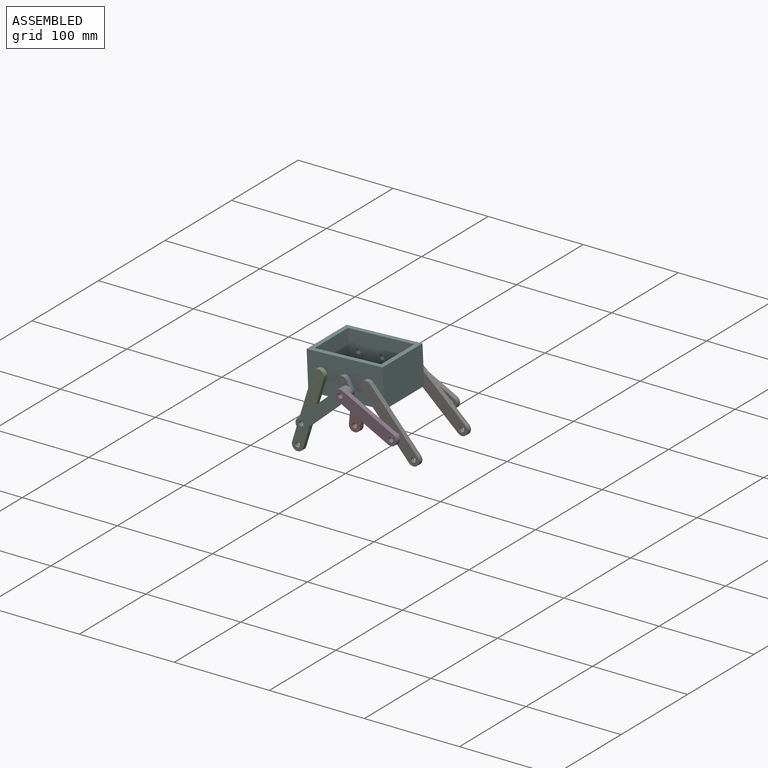
[diagram: assembled view]
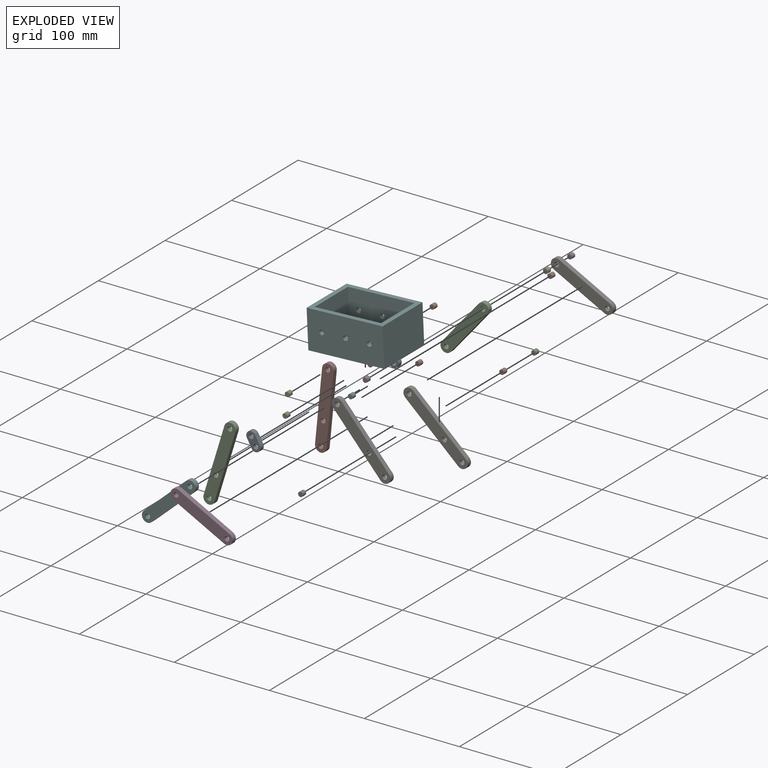
[diagram: exploded view]
GUIDED TOUR — MATED ASSEMBLY (Onshape document 2fccbab995a36dbee52e67f5, AutoMate assembly 2fccbab995a36dbee52e67f5_6775e2d75254c51af72c3cbe_d1aa989e99f5e056343849bb_default)

This assembly has 24 components, labeled P0..P23 below (a component is one placed occurrence of a part; the same part can appear more than once), held together by 27 mates. A mate is a constraint between two components; its type names the relative motion it leaves free:
  REVOLUTE — leaves rotation about the listed axis free (a hinge).
Axis/direction vectors are unit vectors and 'through' points are millimeter coordinates, both in the assembly's world frame.

MATES
  1. REVOLUTE "轉動 26": P18 <-> P14, axis (0.000, 1.000, 0.000) through (62.03, 70.00, -32.43) mm
  2. REVOLUTE "轉動 16": P23 <-> P1, axis (0.000, 1.000, 0.000) through (-24.97, 65.00, -1.14) mm
  3. REVOLUTE "轉動 3": P21 <-> P13, axis (0.000, -1.000, 0.000) through (24.97, 0.00, 1.14) mm
  4. REVOLUTE "轉動 14": P0 <-> P21, axis (0.000, -1.000, 0.000) through (0.00, 60.00, 0.00) mm
  5. REVOLUTE "轉動 23": P15 <-> P18, axis (0.000, 1.000, 0.000) through (62.03, 65.00, -32.43) mm
  6. REVOLUTE "轉動 18": P11 <-> P12, axis (0.000, 1.000, 0.000) through (8.68, 65.00, -4.97) mm
  7. REVOLUTE "轉動 22": P15 <-> P6, axis (0.000, 1.000, 0.000) through (62.03, 65.00, -32.43) mm
  8. REVOLUTE "轉動 8": P10 <-> P5, axis (0.000, -1.000, 0.000) through (-39.58, -5.00, -48.96) mm
  9. REVOLUTE "轉動 13": P9 <-> P21, axis (0.000, -1.000, 0.000) through (24.97, 60.00, 1.14) mm
  10. REVOLUTE "轉動 2": P21 <-> P20, axis (0.000, -1.000, 0.000) through (-24.97, 0.00, -1.14) mm
  11. REVOLUTE "轉動 6": P13 <-> P22, axis (0.000, 1.000, 0.000) through (24.97, 0.00, 1.14) mm
  12. REVOLUTE "轉動 4": P4 <-> P8, axis (0.000, 1.000, 0.000) through (0.00, 0.00, 0.00) mm
  13. REVOLUTE "轉動 20": P7 <-> P2, axis (0.000, 1.000, 0.000) through (-29.94, 70.00, -50.90) mm
  14. REVOLUTE "333": P8 <-> P5, axis (0.000, -1.000, 0.000) through (4.91, -5.00, -8.71) mm
  15. REVOLUTE "轉動 10": P22 <-> P16, axis (0.000, -1.000, 0.000) through (58.26, -5.00, -36.16) mm
  16. REVOLUTE "轉動 11": P16 <-> P19, axis (0.000, -1.000, 0.000) through (58.26, -10.00, -36.16) mm
  17. REVOLUTE "轉動 9": P5 <-> P19, axis (0.000, -1.000, 0.000) through (4.91, -10.00, -8.71) mm
  18. REVOLUTE "轉動 1": P21 <-> P4, axis (0.000, -1.000, 0.000) through (0.00, 0.00, 0.00) mm
  19. REVOLUTE "轉動 19": P2 <-> P12, axis (0.000, -1.000, 0.000) through (8.68, 65.00, -4.97) mm
  20. REVOLUTE "轉動 17": P0 <-> P11, axis (0.000, -1.000, 0.000) through (8.68, 60.00, -4.97) mm
  21. REVOLUTE "轉動 5": P20 <-> P10, axis (0.000, 1.000, 0.000) through (-24.97, 0.00, -1.14) mm
  22. REVOLUTE "轉動 24": P12 <-> P3, axis (0.000, 1.000, 0.000) through (8.68, 70.00, -4.97) mm
  23. REVOLUTE "轉動 12": P1 <-> P21, axis (0.000, -1.000, 0.000) through (-24.97, 60.00, -1.14) mm
  24. REVOLUTE "轉動 25": P2 <-> P14, axis (0.000, 1.000, 0.000) through (8.68, 70.00, -4.97) mm
  25. REVOLUTE "轉動 21": P23 <-> P2, axis (0.000, 1.000, 0.000) through (-29.94, 65.00, -50.90) mm
  26. REVOLUTE "轉動 7": P17 <-> P21, axis (0.000, -1.000, 0.000) through (0.00, 60.00, 0.00) mm
  27. REVOLUTE "轉動 15": P6 <-> P9, axis (0.000, 1.000, 0.000) through (24.97, 65.00, 1.14) mm

ASSEMBLY ORDER
  1. P0 — the base component [order heuristic]
  2. P17 — core [order heuristic]
  3. P13 — core [order heuristic]
  4. P23 [order verified]
  5. P2 — core [order heuristic]
  6. P22 — core [order heuristic]
  7. P21 [order verified]
  8. P12 — core [order heuristic]
  9. P20 [order verified]
  10. P8 — core [order heuristic]
  11. P7 [order verified]
  12. P11 [order verified]
  13. P19 [order verified]
  14. P15 [order verified]
  15. P9 [order verified]
  16. P18 [order verified]
  17. P6 [order verified]
  18. P3 [order verified]
  19. P1 [order verified]
  20. P4 — core [order heuristic]
  21. P10 [order verified]
  22. P5 [order verified]
  23. P16 [order verified]
  24. P14 [order verified]
(P3, P7, P9, P10, P11, P15 verified with a relaxed clearance tolerance: the source model stores slight part interference there.)
Order-tag legend:
  [order verified] — this step's position reverses a verified removal order: the component was checked to insert without passing through the ones already placed.
  [order heuristic] — the first 8 components form the assembly's core: parts whose collision-free extraction could not be verified, listed in mate-graph order.

Of the 24 components, 24 carry the full construction recipe — the FeatureScript program that regenerates the part's solid from scratch; the rest are supplied as boundary geometry only.
Because this assembly has more than 12 components, the tour below covers the 12 most significant ones individually (every recipe-attached component first, then the largest by part volume), in assembly order; the remaining 12 are summarized together in a grouped section at the end.
Each toured component is shown spotlighted twice — in the assembled view, then in the exploded view, where a leader line traces a displaced component back to its assembled socket (saturated green if recipe-attached, orange if geometry-only; every other component desaturated gray) — followed by its recipe or geometry summary and the mates that hold it.
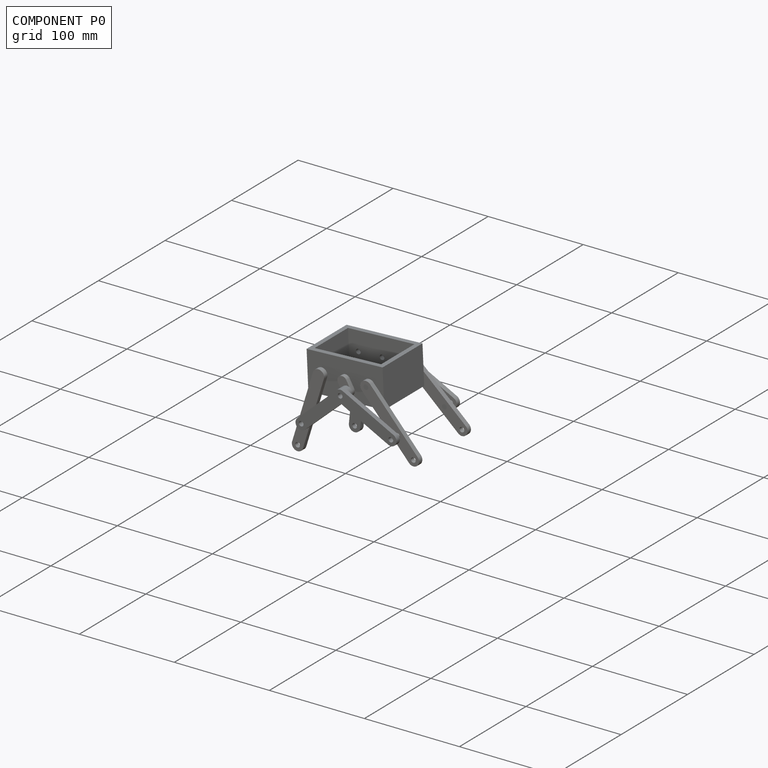
[diagram: component P0 — assembled]
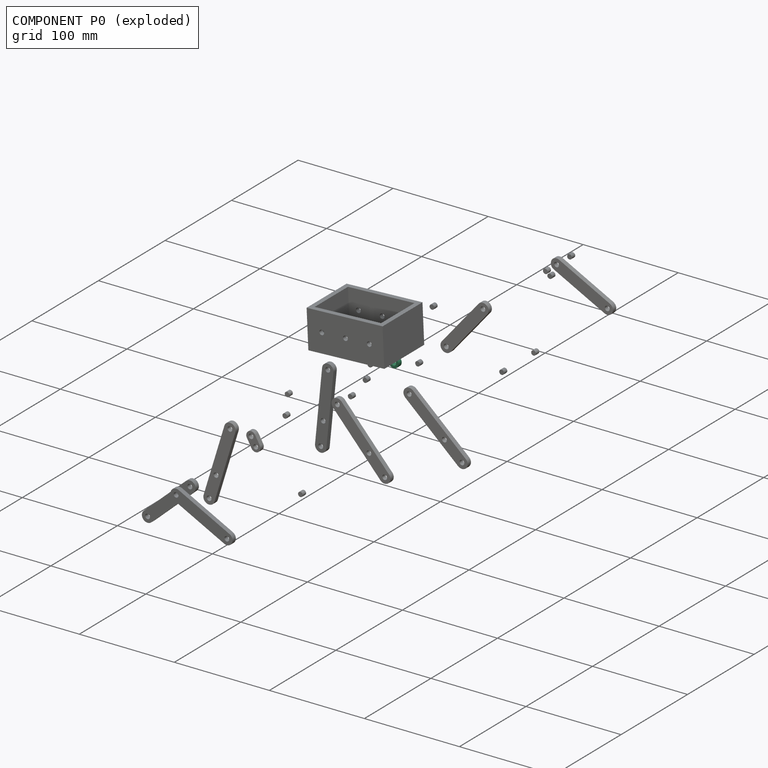
[diagram: component P0 — exploded]
COMPONENT P0 — recipe-attached (CADFS 00737394, mesh-verified: the recipe's output STEP matches this component's geometry to below the mesh-comparison resolution (tessellation chordal tolerance ~0.0343 mm)).
Held by: REVOLUTE mate "轉動 14" to P21; REVOLUTE mate "轉動 17" to P11.
Construction recipe (FeatureScript — the CAD program that rebuilds this solid; sketch coordinates are in the units given by the * unit suffixes, e.g. mm):

FeatureScript 1511;
import(path : "onshape/std/geometry.fs", version : "1511.0");
import(path : "onshape/std/common.fs", version : "1511.0");
const mm = millimeter;
const VERTEX = EntityType.VERTEX;
const EDGE = EntityType.EDGE;
const FACE = EntityType.FACE;
const BODY = EntityType.BODY;
function v(x, y){return vector(x, y);}
function OD(order){return orderDisambiguation(order);}
function OSD(set){return originalSetDisambiguation(set);}
function TD(topology){return topologyDisambiguation(topology);}
function TDD(query){return trueDependencyDisambiguation(query);}
function sQuery(a, b, c) {return sketchEntityQuery(a, b, c);}

annotation { "Feature Type Name" : "Feature", "Feature Type Description" : "" }
export const myFeature = defineFeature(function(context is Context, id is Id, definition is map)
    precondition{}
    {
        {
            var Q0;
            Q0=qCreatedBy(makeId("Front.planeOp"),FACE);
            var sketch = newSketch(context, id + "F0", { "sketchPlane" : qUnion([Q0])});
            skLineSegment(sketch, "E0.bottom", {"start": v(0, 0) * mm, "end": v(10, 0) * mm});
            skLineSegment(sketch, "E0.top", {"start": v(0, 10) * mm, "end": v(10, 10) * mm});
            skArc(sketch, "E1", {"start": v(10, 0) * mm, "mid": v(15, 5) * mm, "end": v(10, 10) * mm});
            skArc(sketch, "E2", {"start": v(0, 10) * mm, "mid": v(-5, 5) * mm, "end": v(0, 0) * mm});
            skCircle(sketch, "E3", {"center": v(0, 5) * mm, "radius": 2.5 * mm});
            skCircle(sketch, "E4", {"center": v(10, 5) * mm, "radius": 2.5 * mm});
            skSolve(sketch);
        }
        {
            var Q0;
            Q0=makeQuery(id+"F0.imprint","IMPRINT",FACE,{"disambiguationData":[TD([[makeQuery(id+"F0.imprint","IMPRINT",EDGE,{"derivedFrom":sQuery(id+"F0.wireOp",EDGE,"E0.bottom")}),1.0]])]});
            var Q1;
            Q1=makeQuery(id+"F0.imprint","IMPRINT",FACE,{"disambiguationData":[TD([[makeQuery(id+"F0.imprint","IMPRINT",EDGE,{"derivedFrom":sQuery(id+"F0.wireOp",EDGE,"oxad4vhf-pd54-7uuk-ZnQR-99PdKl2qKgE8")}),1.0]])]});
            var Q2;
            Q2=makeQuery(id+"F0.imprint","IMPRINT",FACE,{"disambiguationData":[TD([[makeQuery(id+"F0.imprint","IMPRINT",EDGE,{"derivedFrom":sQuery(id+"F0.wireOp",EDGE,"p5xoTqFS-tro0-XjQH-eI7p-wU4K02YeJdpj")}),1.0]])]});
            extrude(context, id + "F1", {"entities" : qUnion([Q0, Q1, Q2]), "depth" : 5 * mm, "offsetDistance" : 25 * mm});
        }
    });
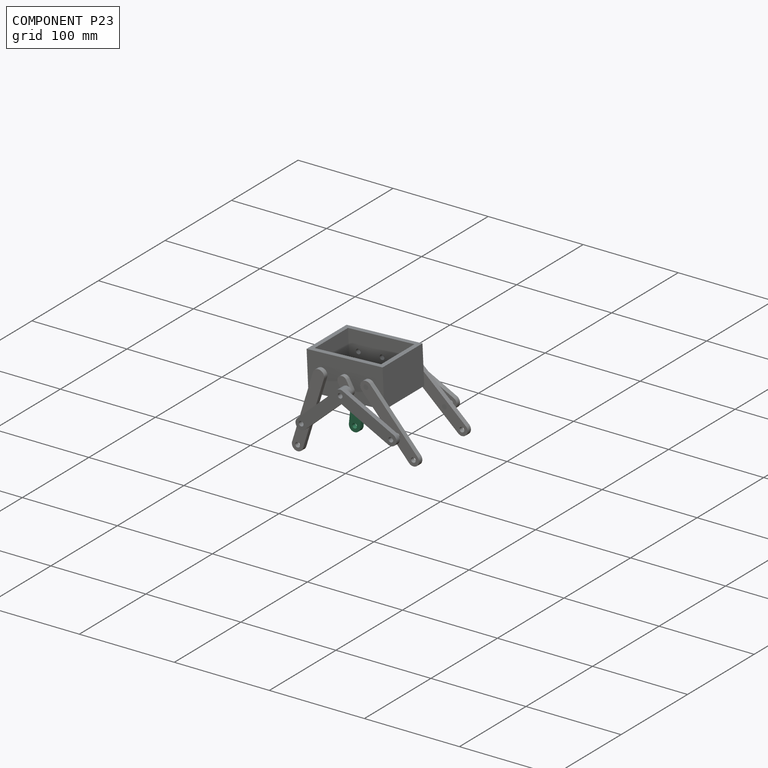
[diagram: component P23 — assembled]
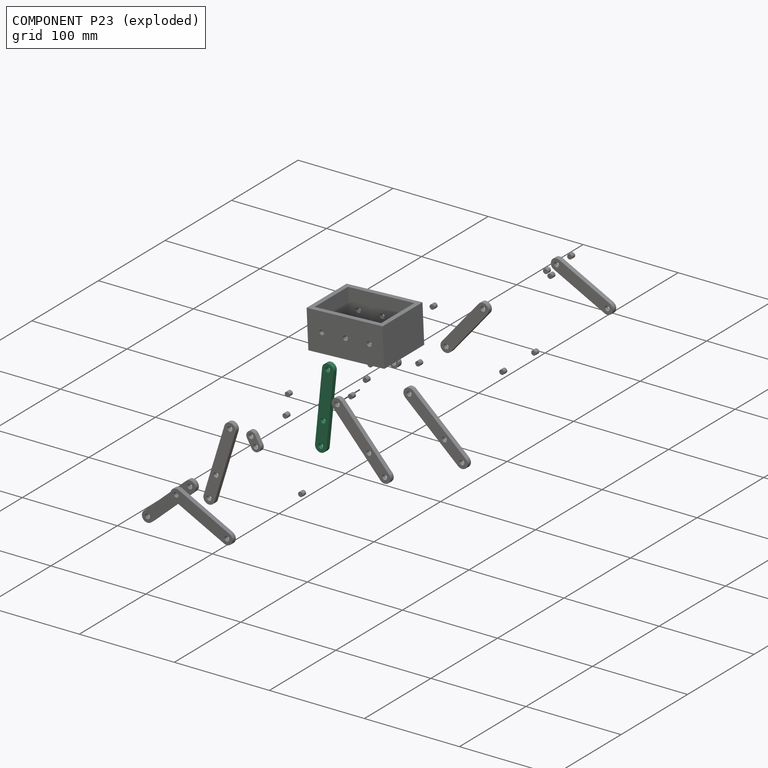
[diagram: component P23 — exploded]
COMPONENT P23 — same part as P6 (CADFS 00737389); its construction recipe is shown at P6.
Held by: REVOLUTE mate "轉動 16" to P1; REVOLUTE mate "轉動 21" to P2.
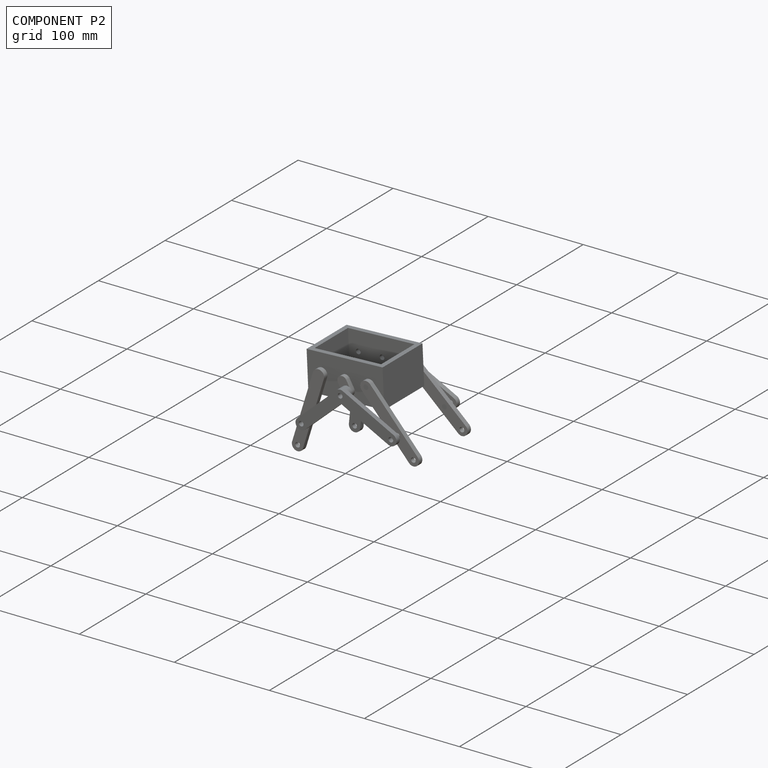
[diagram: component P2 — assembled]
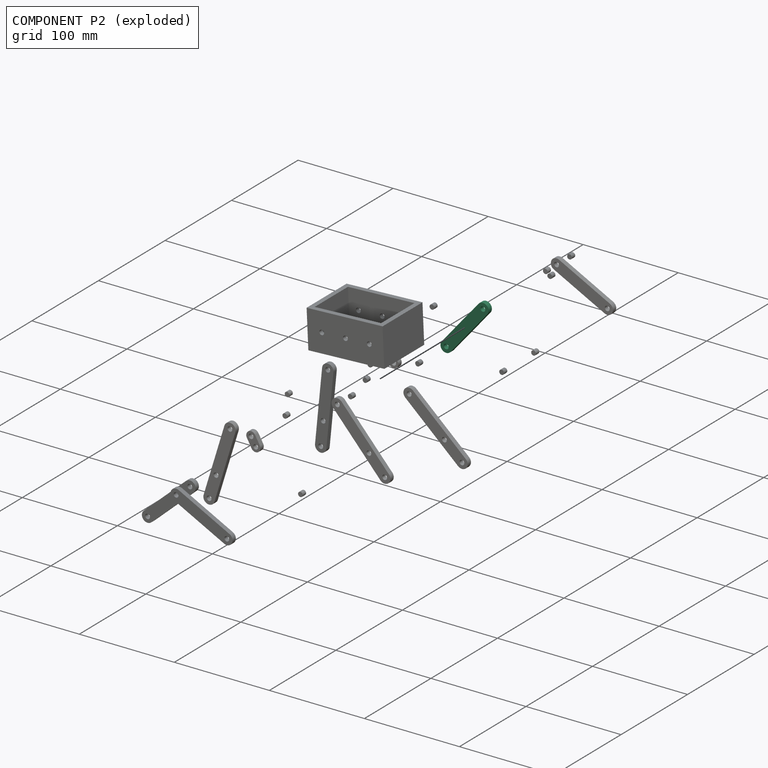
[diagram: component P2 — exploded]
COMPONENT P2 — recipe-attached (CADFS 00737378, mesh-verified: the recipe's output STEP matches this component's geometry to below the mesh-comparison resolution (tessellation chordal tolerance ~0.11 mm)).
Held by: REVOLUTE mate "轉動 20" to P7; REVOLUTE mate "轉動 19" to P12; REVOLUTE mate "轉動 25" to P14; REVOLUTE mate "轉動 21" to P23.
Construction recipe (FeatureScript — the CAD program that rebuilds this solid; sketch coordinates are in the units given by the * unit suffixes, e.g. mm):

FeatureScript 1511;
import(path : "onshape/std/geometry.fs", version : "1511.0");
import(path : "onshape/std/common.fs", version : "1511.0");
const mm = millimeter;
const VERTEX = EntityType.VERTEX;
const EDGE = EntityType.EDGE;
const FACE = EntityType.FACE;
const BODY = EntityType.BODY;
function v(x, y){return vector(x, y);}
function OD(order){return orderDisambiguation(order);}
function OSD(set){return originalSetDisambiguation(set);}
function TD(topology){return topologyDisambiguation(topology);}
function TDD(query){return trueDependencyDisambiguation(query);}
function sQuery(a, b, c) {return sketchEntityQuery(a, b, c);}

annotation { "Feature Type Name" : "Feature", "Feature Type Description" : "" }
export const myFeature = defineFeature(function(context is Context, id is Id, definition is map)
    precondition{}
    {
        {
            var Q0;
            Q0=qCreatedBy(makeId("Front.planeOp"),FACE);
            var sketch = newSketch(context, id + "F0", { "sketchPlane" : qUnion([Q0])});
            skLineSegment(sketch, "E0.bottom", {"start": v(0, 0) * mm, "end": v(60, 0) * mm});
            skLineSegment(sketch, "E0.top", {"start": v(0, 12) * mm, "end": v(60, 12) * mm});
            skArc(sketch, "E1", {"start": v(60, 0) * mm, "mid": v(66, 6) * mm, "end": v(60, 12) * mm});
            skArc(sketch, "E2", {"start": v(0, 12) * mm, "mid": v(-6, 6) * mm, "end": v(0, 0) * mm});
            skCircle(sketch, "E3", {"center": v(0, 6) * mm, "radius": 2.5 * mm});
            skCircle(sketch, "E4", {"center": v(60, 6) * mm, "radius": 2.5 * mm});
            skSolve(sketch);
        }
        {
            var Q0;
            Q0=makeQuery(id+"F0.imprint","IMPRINT",FACE,{"disambiguationData":[TD([[makeQuery(id+"F0.imprint","IMPRINT",EDGE,{"derivedFrom":sQuery(id+"F0.wireOp",EDGE,"E0.bottom")}),1.0]])]});
            var Q1;
            Q1=makeQuery(id+"F0.imprint","IMPRINT",FACE,{"disambiguationData":[TD([[makeQuery(id+"F0.imprint","IMPRINT",EDGE,{"derivedFrom":sQuery(id+"F0.wireOp",EDGE,"i1ueIBZ2-LBOK-ZiPW-8Dnt-5YwOhWg0EiJV")}),1.0]])]});
            var Q2;
            Q2=makeQuery(id+"F0.imprint","IMPRINT",FACE,{"disambiguationData":[TD([[makeQuery(id+"F0.imprint","IMPRINT",EDGE,{"derivedFrom":sQuery(id+"F0.wireOp",EDGE,"1IPOGQ9F-0NTp-rzeO-0T4L-GCktHTDaA0Ut")}),1.0]])]});
            extrude(context, id + "F1", {"entities" : qUnion([Q0, Q1, Q2]), "depth" : 5 * mm, "offsetDistance" : 25 * mm});
        }
    });
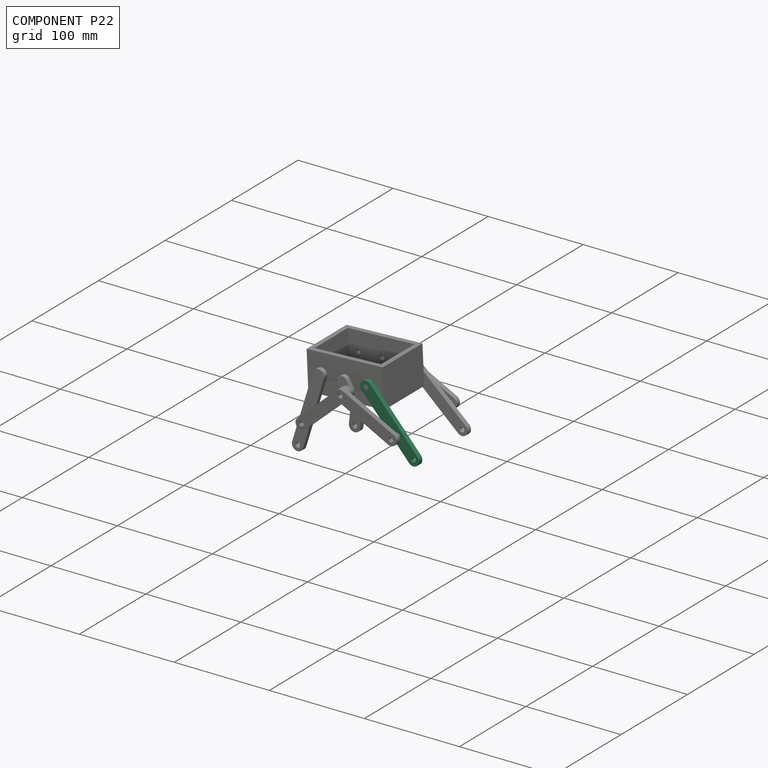
[diagram: component P22 — assembled]
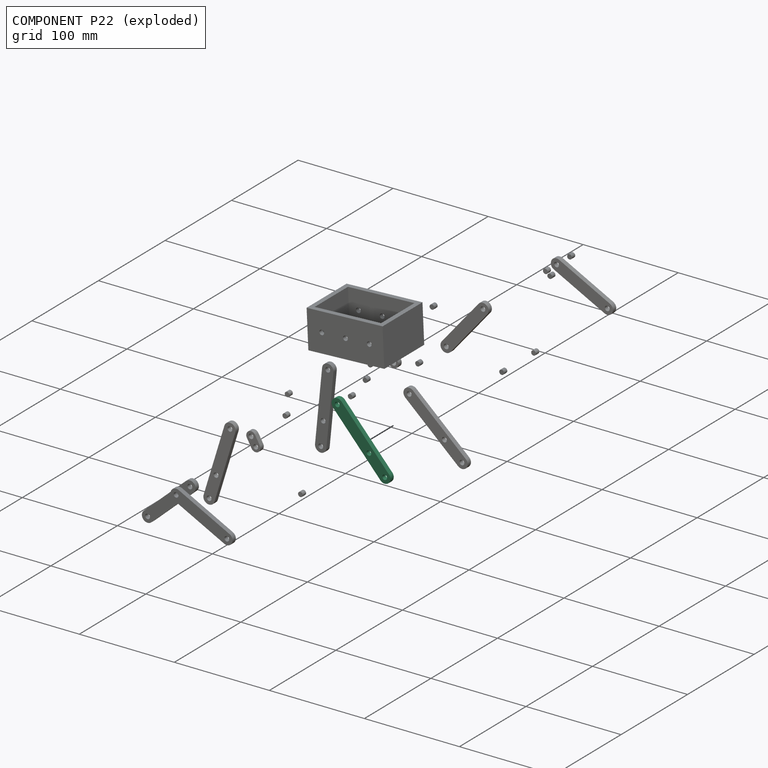
[diagram: component P22 — exploded]
COMPONENT P22 — same part as P6 (CADFS 00737389); its construction recipe is shown at P6.
Held by: REVOLUTE mate "轉動 6" to P13; REVOLUTE mate "轉動 10" to P16.
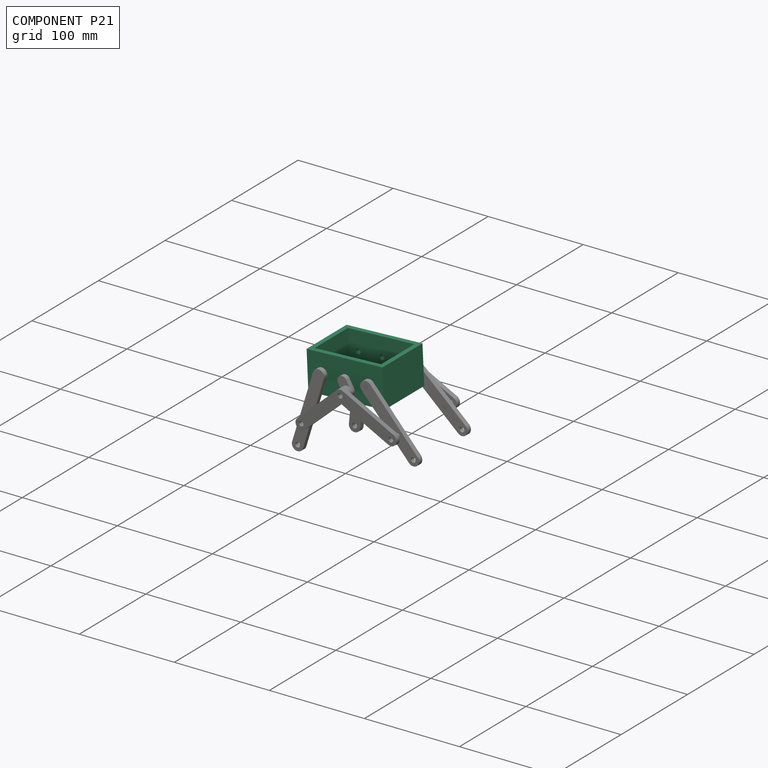
[diagram: component P21 — assembled]
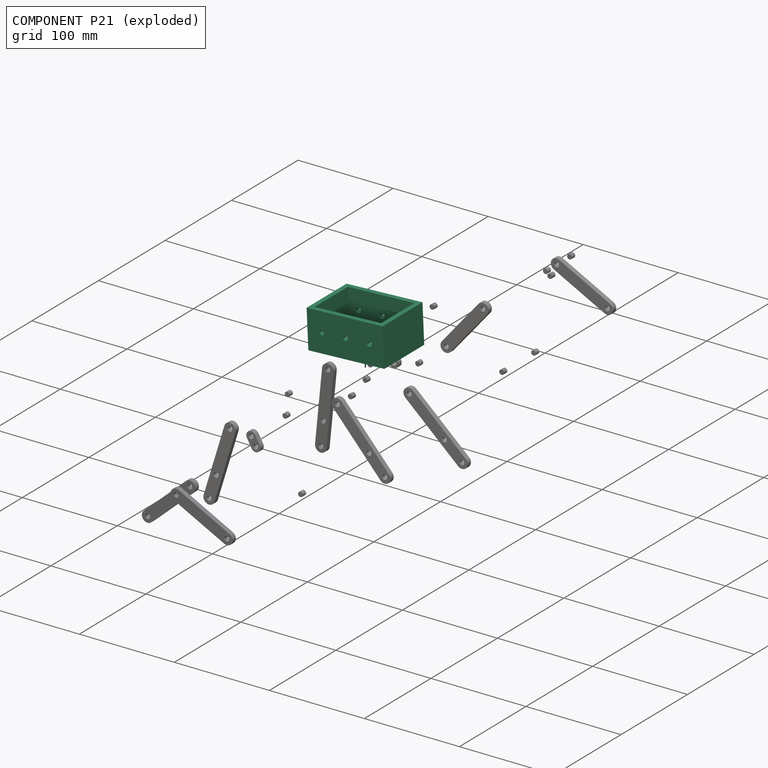
[diagram: component P21 — exploded]
COMPONENT P21 — recipe-attached (CADFS 00737423, mesh-verified: the recipe's output STEP matches this component's geometry to below the mesh-comparison resolution (tessellation chordal tolerance ~0.162 mm)).
Held by: REVOLUTE mate "轉動 3" to P13; REVOLUTE mate "轉動 14" to P0; REVOLUTE mate "轉動 13" to P9; REVOLUTE mate "轉動 2" to P20; REVOLUTE mate "轉動 1" to P4; REVOLUTE mate "轉動 12" to P1; REVOLUTE mate "轉動 7" to P17.
Construction recipe (FeatureScript — the CAD program that rebuilds this solid; sketch coordinates are in the units given by the * unit suffixes, e.g. mm):

FeatureScript 1511;
import(path : "onshape/std/geometry.fs", version : "1511.0");
import(path : "onshape/std/common.fs", version : "1511.0");
const mm = millimeter;
const VERTEX = EntityType.VERTEX;
const EDGE = EntityType.EDGE;
const FACE = EntityType.FACE;
const BODY = EntityType.BODY;
function v(x, y){return vector(x, y);}
function OD(order){return orderDisambiguation(order);}
function OSD(set){return originalSetDisambiguation(set);}
function TD(topology){return topologyDisambiguation(topology);}
function TDD(query){return trueDependencyDisambiguation(query);}
function sQuery(a, b, c) {return sketchEntityQuery(a, b, c);}

annotation { "Feature Type Name" : "Feature", "Feature Type Description" : "" }
export const myFeature = defineFeature(function(context is Context, id is Id, definition is map)
    precondition{}
    {
        {
            var Q0;
            Q0=qCreatedBy(makeId("Top.planeOp"),FACE);
            var sketch = newSketch(context, id + "F0", { "sketchPlane" : qUnion([Q0])});
            skLineSegment(sketch, "E0.bottom", {"start": v(40, 30) * mm, "end": v(-40, 30) * mm});
            skLineSegment(sketch, "E0.top", {"start": v(40, -30) * mm, "end": v(-40, -30) * mm});
            skLineSegment(sketch, "E0.left", {"start": v(40, 30) * mm, "end": v(40, -30) * mm});
            skLineSegment(sketch, "E0.right", {"start": v(-40, 30) * mm, "end": v(-40, -30) * mm});
            skPoint(sketch, "E0.middle", {"position": v(0, 0) * mm});
            skLineSegment(sketch, "E1.bottom", {"start": v(35, 25) * mm, "end": v(-35, 25) * mm});
            skLineSegment(sketch, "E1.top", {"start": v(35, -25) * mm, "end": v(-35, -25) * mm});
            skLineSegment(sketch, "E1.left", {"start": v(35, 25) * mm, "end": v(35, -25) * mm});
            skLineSegment(sketch, "E1.right", {"start": v(-35, 25) * mm, "end": v(-35, -25) * mm});
            skSolve(sketch);
        }
        {
            var Q0;
            Q0=makeQuery(id+"F0.imprint","IMPRINT",FACE,{"disambiguationData":[TD([[makeQuery(id+"F0.imprint","IMPRINT",EDGE,{"derivedFrom":sQuery(id+"F0.wireOp",EDGE,"E0.bottom")}),1.0]])]});
            extrude(context, id + "F1", {"entities" : qUnion([Q0]), "endBound" : BoundingType.SYMMETRIC, "depth" : 40 * mm, "offsetDistance" : 25 * mm});
        }
        {
            var Q0;
            Q0=makeQuery(id+"F1.opExtrude","SWEPT_FACE",FACE,{"disambiguationData":[OSD([sQuery(id+"F0.wireOp",EDGE,"E0.top")])]});
            var sketch = newSketch(context, id + "F2", { "sketchPlane" : qUnion([Q0])});
            skCircle(sketch, "E2", {"center": v(0, 0) * mm, "radius": 2.5 * mm});
            skCircle(sketch, "E3", {"center": v(25, 0) * mm, "radius": 2.5 * mm});
            skCircle(sketch, "E4", {"center": v(-25, 0) * mm, "radius": 2.5 * mm});
            skSolve(sketch);
        }
        {
            var Q0;
            Q0=makeQuery(id+"F2.imprint","IMPRINT",FACE,{"disambiguationData":[TD([[makeQuery(id+"F2.imprint","IMPRINT",EDGE,{"derivedFrom":sQuery(id+"F2.wireOp",EDGE,"E4")}),1.0]])]});
            var Q1;
            Q1=makeQuery(id+"F2.imprint","IMPRINT",FACE,{"disambiguationData":[TD([[makeQuery(id+"F2.imprint","IMPRINT",EDGE,{"derivedFrom":sQuery(id+"F2.wireOp",EDGE,"E2")}),1.0]])]});
            var Q2;
            Q2=makeQuery(id+"F2.imprint","IMPRINT",FACE,{"disambiguationData":[TD([[makeQuery(id+"F2.imprint","IMPRINT",EDGE,{"derivedFrom":sQuery(id+"F2.wireOp",EDGE,"E3")}),1.0]])]});
            extrude(context, id + "F3", {"entities" : qUnion([Q0, Q1, Q2]), "operationType" : NewBodyOperationType.REMOVE, "endBound" : BoundingType.THROUGH_ALL, "oppositeDirection" : true, "depth" : 25 * mm, "offsetDistance" : 25 * mm});
        }
    });
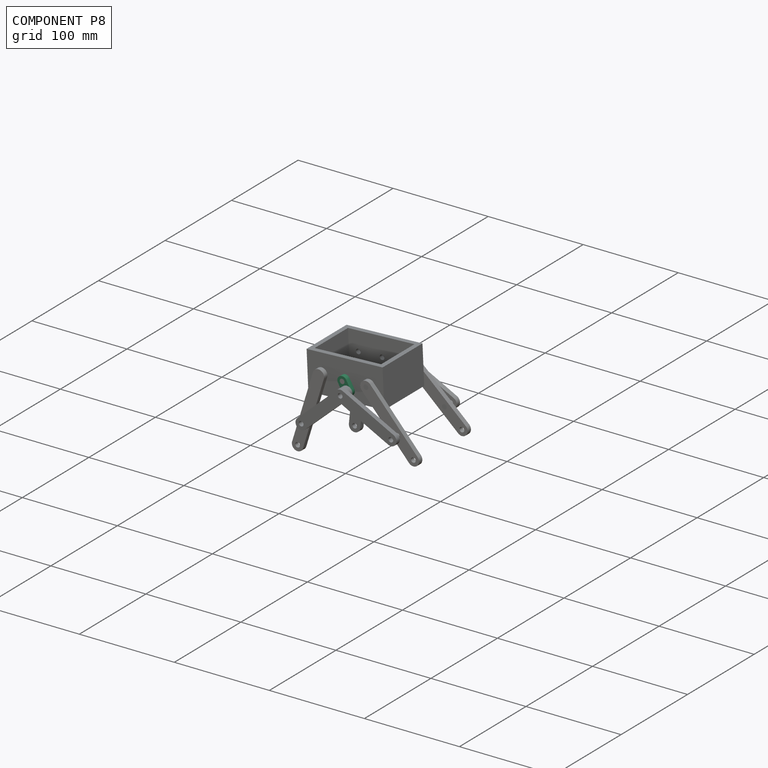
[diagram: component P8 — assembled]
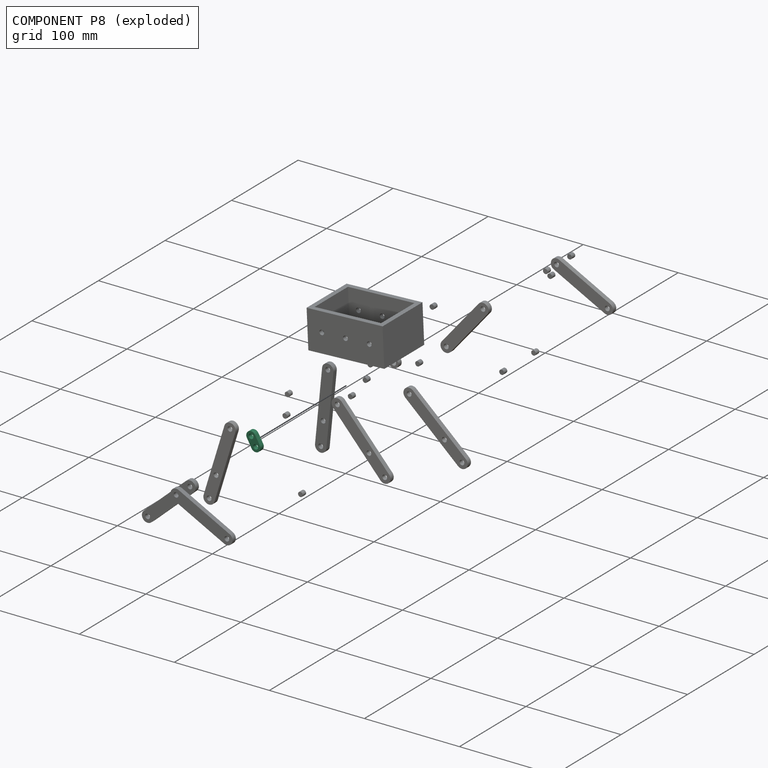
[diagram: component P8 — exploded]
COMPONENT P8 — same part as P0 (CADFS 00737394); its construction recipe is shown at P0.
Held by: REVOLUTE mate "轉動 4" to P4; REVOLUTE mate "333" to P5.
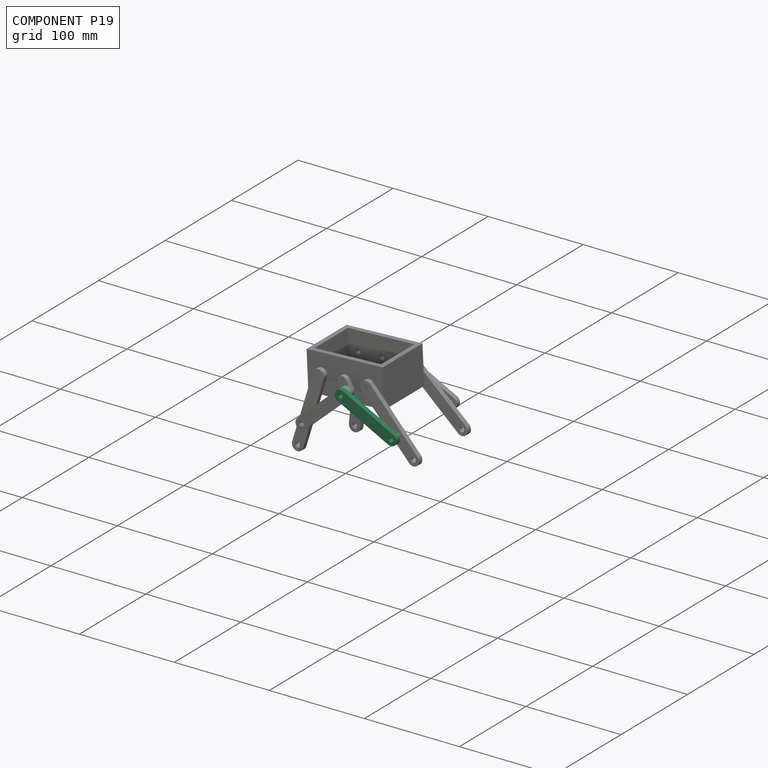
[diagram: component P19 — assembled]
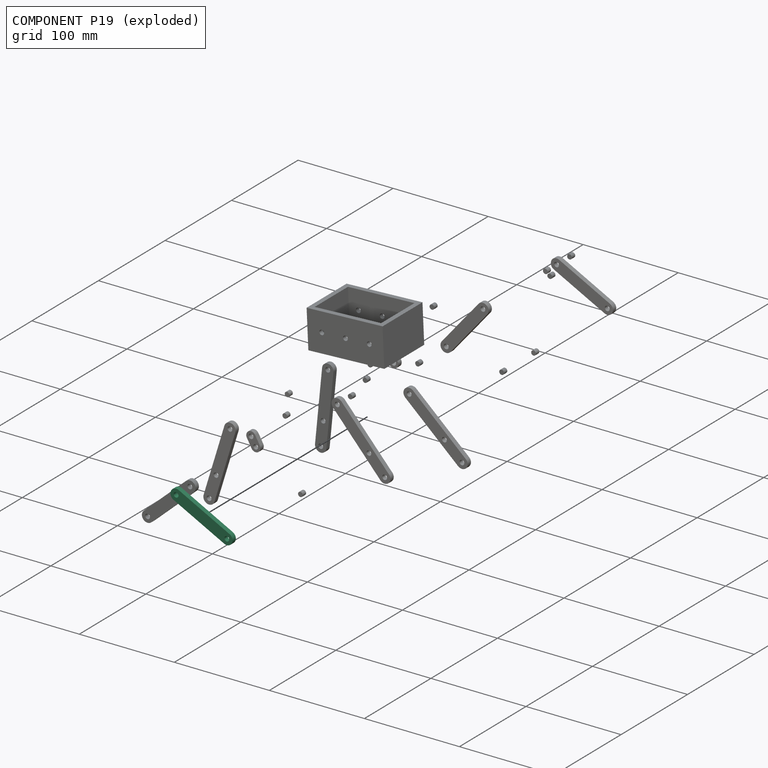
[diagram: component P19 — exploded]
COMPONENT P19 — same part as P2 (CADFS 00737378); its construction recipe is shown at P2.
Held by: REVOLUTE mate "轉動 11" to P16; REVOLUTE mate "轉動 9" to P5.
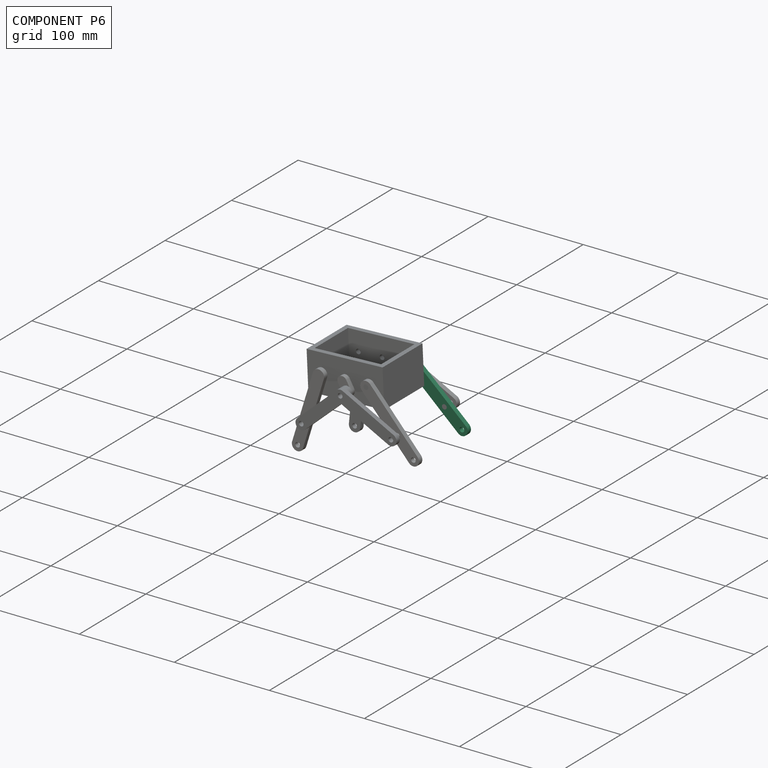
[diagram: component P6 — assembled]
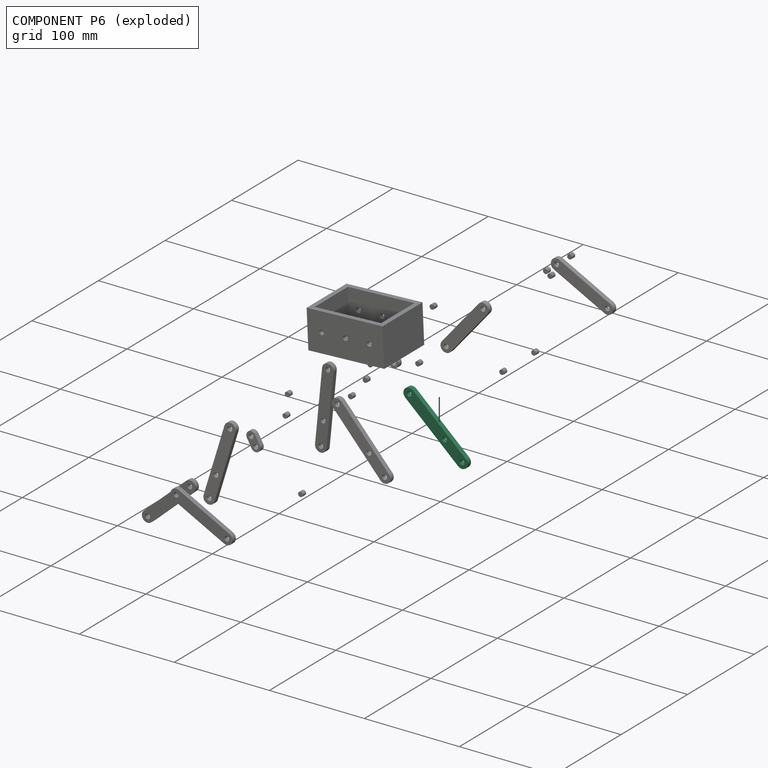
[diagram: component P6 — exploded]
COMPONENT P6 — recipe-attached (CADFS 00737389, mesh-verified: the recipe's output STEP matches this component's geometry to below the mesh-comparison resolution (tessellation chordal tolerance ~0.132 mm)).
Held by: REVOLUTE mate "轉動 22" to P15; REVOLUTE mate "轉動 15" to P9.
Construction recipe (FeatureScript — the CAD program that rebuilds this solid; sketch coordinates are in the units given by the * unit suffixes, e.g. mm):

FeatureScript 1511;
import(path : "onshape/std/geometry.fs", version : "1511.0");
import(path : "onshape/std/common.fs", version : "1511.0");
const mm = millimeter;
const VERTEX = EntityType.VERTEX;
const EDGE = EntityType.EDGE;
const FACE = EntityType.FACE;
const BODY = EntityType.BODY;
function v(x, y){return vector(x, y);}
function OD(order){return orderDisambiguation(order);}
function OSD(set){return originalSetDisambiguation(set);}
function TD(topology){return topologyDisambiguation(topology);}
function TDD(query){return trueDependencyDisambiguation(query);}
function sQuery(a, b, c) {return sketchEntityQuery(a, b, c);}

annotation { "Feature Type Name" : "Feature", "Feature Type Description" : "" }
export const myFeature = defineFeature(function(context is Context, id is Id, definition is map)
    precondition{}
    {
        {
            var Q0;
            Q0=qCreatedBy(makeId("Front.planeOp"),FACE);
            var sketch = newSketch(context, id + "F0", { "sketchPlane" : qUnion([Q0])});
            skLineSegment(sketch, "E0.bottom", {"start": v(0, 0) * mm, "end": v(75, 0) * mm});
            skLineSegment(sketch, "E0.top", {"start": v(0, 12) * mm, "end": v(75, 12) * mm});
            skArc(sketch, "E1", {"start": v(75, 0) * mm, "mid": v(81, 6) * mm, "end": v(75, 12) * mm});
            skArc(sketch, "E2", {"start": v(0, 12) * mm, "mid": v(-6, 6) * mm, "end": v(0, 0) * mm});
            skCircle(sketch, "E3", {"center": v(0, 6) * mm, "radius": 2.5 * mm});
            skCircle(sketch, "E4", {"center": v(75, 6) * mm, "radius": 2.5 * mm});
            skCircle(sketch, "E5", {"center": v(25, 6) * mm, "radius": 2.5 * mm});
            skSolve(sketch);
        }
        {
            var Q0;
            Q0=makeQuery(id+"F0.imprint","IMPRINT",FACE,{"disambiguationData":[TD([[makeQuery(id+"F0.imprint","IMPRINT",EDGE,{"derivedFrom":sQuery(id+"F0.wireOp",EDGE,"E0.bottom")}),1.0]])]});
            var Q1;
            Q1=makeQuery(id+"F0.imprint","IMPRINT",FACE,{"disambiguationData":[TD([[makeQuery(id+"F0.imprint","IMPRINT",EDGE,{"derivedFrom":sQuery(id+"F0.wireOp",EDGE,"OiZRVR2j-fgGC-Y1c5-xTuJ-MU726yC0vpi6")}),1.0]])]});
            var Q2;
            Q2=makeQuery(id+"F0.imprint","IMPRINT",FACE,{"disambiguationData":[TD([[makeQuery(id+"F0.imprint","IMPRINT",EDGE,{"derivedFrom":sQuery(id+"F0.wireOp",EDGE,"OVGhL1fR-kpwL-Q1Y9-nKem-xCdm6wDIFtNx")}),1.0]])]});
            extrude(context, id + "F1", {"entities" : qUnion([Q0, Q1, Q2]), "depth" : 5 * mm, "offsetDistance" : 25 * mm});
        }
    });
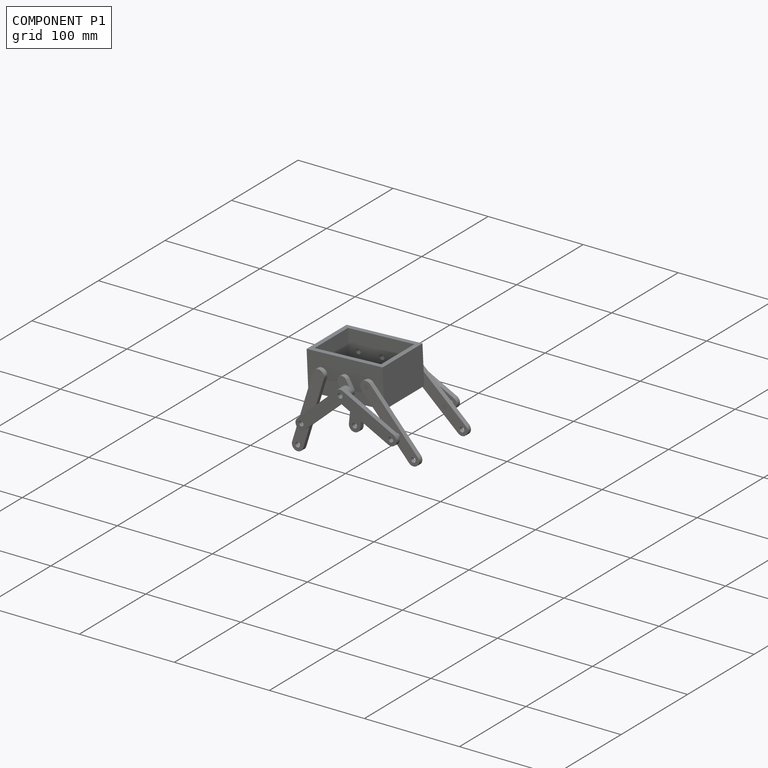
[diagram: component P1 — assembled]
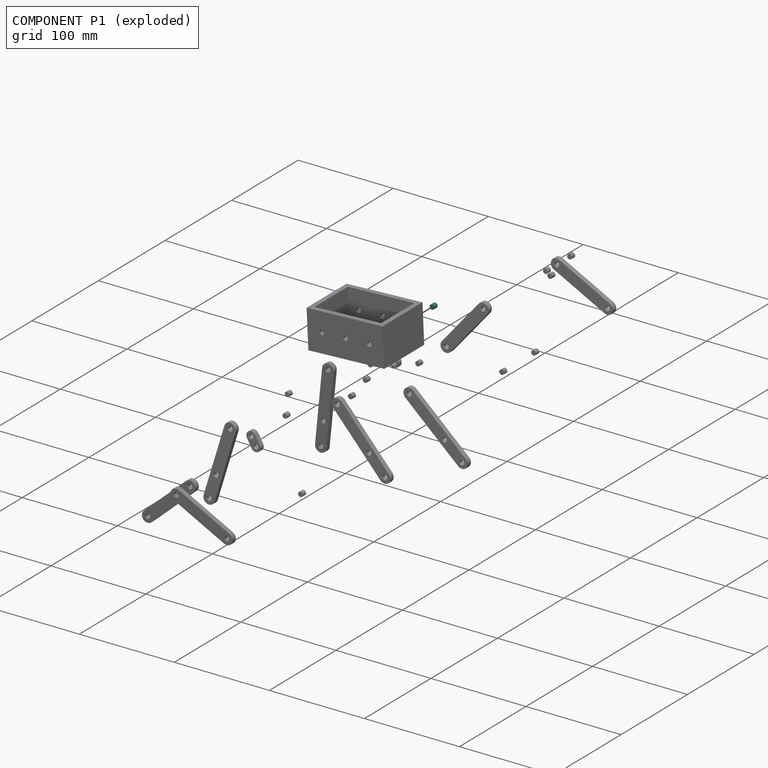
[diagram: component P1 — exploded]
COMPONENT P1 — recipe-attached (CADFS 00737411, mesh-verified: the recipe's output STEP matches this component's geometry to below the mesh-comparison resolution (tessellation chordal tolerance ~0.013 mm)).
Held by: REVOLUTE mate "轉動 16" to P23; REVOLUTE mate "轉動 12" to P21.
Construction recipe (FeatureScript — the CAD program that rebuilds this solid; sketch coordinates are in the units given by the * unit suffixes, e.g. mm):

FeatureScript 1511;
import(path : "onshape/std/geometry.fs", version : "1511.0");
import(path : "onshape/std/common.fs", version : "1511.0");
const mm = millimeter;
const VERTEX = EntityType.VERTEX;
const EDGE = EntityType.EDGE;
const FACE = EntityType.FACE;
const BODY = EntityType.BODY;
function v(x, y){return vector(x, y);}
function OD(order){return orderDisambiguation(order);}
function OSD(set){return originalSetDisambiguation(set);}
function TD(topology){return topologyDisambiguation(topology);}
function TDD(query){return trueDependencyDisambiguation(query);}
function sQuery(a, b, c) {return sketchEntityQuery(a, b, c);}

annotation { "Feature Type Name" : "Feature", "Feature Type Description" : "" }
export const myFeature = defineFeature(function(context is Context, id is Id, definition is map)
    precondition{}
    {
        {
            var Q0;
            Q0=qCreatedBy(makeId("Front.planeOp"),FACE);
            var sketch = newSketch(context, id + "F0", { "sketchPlane" : qUnion([Q0])});
            skCircle(sketch, "E0", {"center": v(0, 0) * mm, "radius": 2.5 * mm});
            skSolve(sketch);
        }
        {
            var Q0;
            Q0=makeQuery(id+"F0.imprint","IMPRINT",FACE,{"disambiguationData":[TD([[makeQuery(id+"F0.imprint","IMPRINT",EDGE,{"derivedFrom":sQuery(id+"F0.wireOp",EDGE,"E0")}),1.0]])]});
            extrude(context, id + "F1", {"entities" : qUnion([Q0]), "depth" : 5 * mm, "offsetDistance" : 25 * mm});
        }
    });
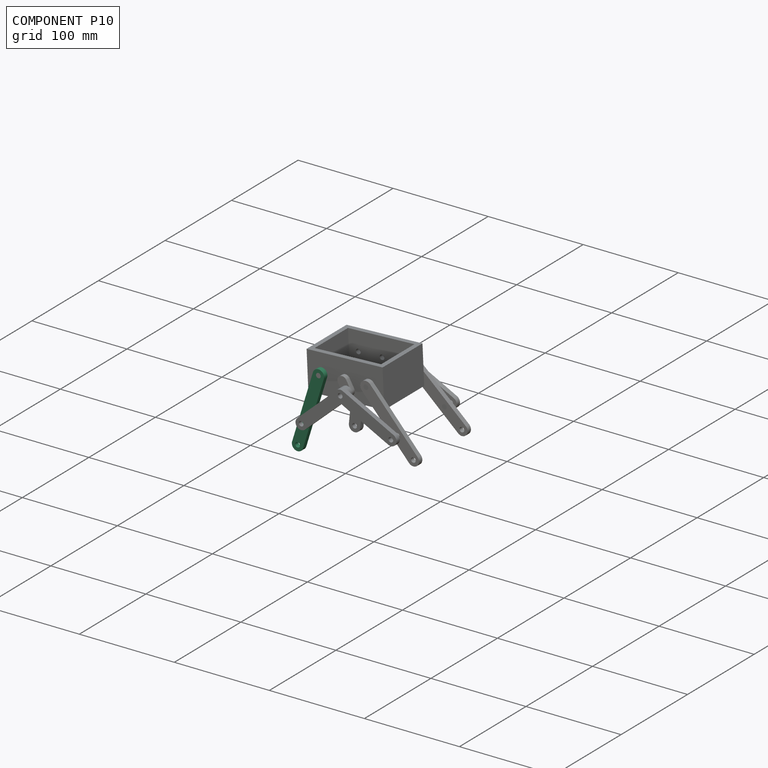
[diagram: component P10 — assembled]
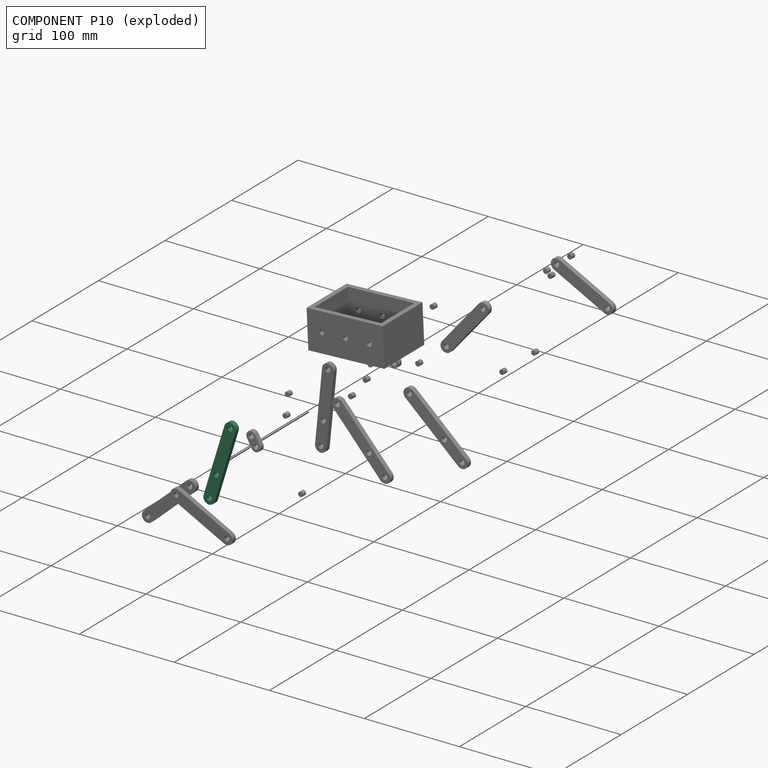
[diagram: component P10 — exploded]
COMPONENT P10 — same part as P6 (CADFS 00737389); its construction recipe is shown at P6.
Held by: REVOLUTE mate "轉動 8" to P5; REVOLUTE mate "轉動 5" to P20.
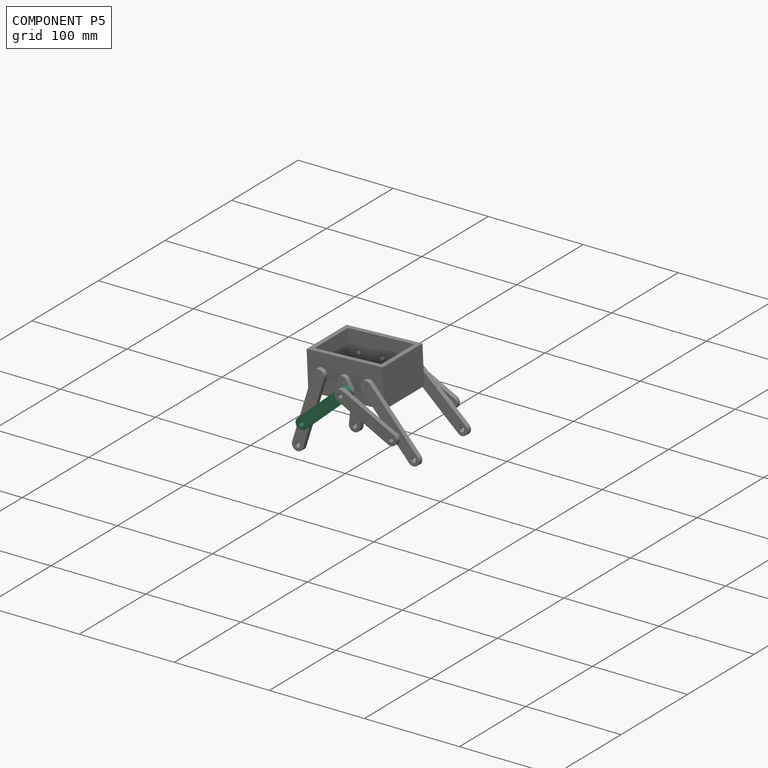
[diagram: component P5 — assembled]
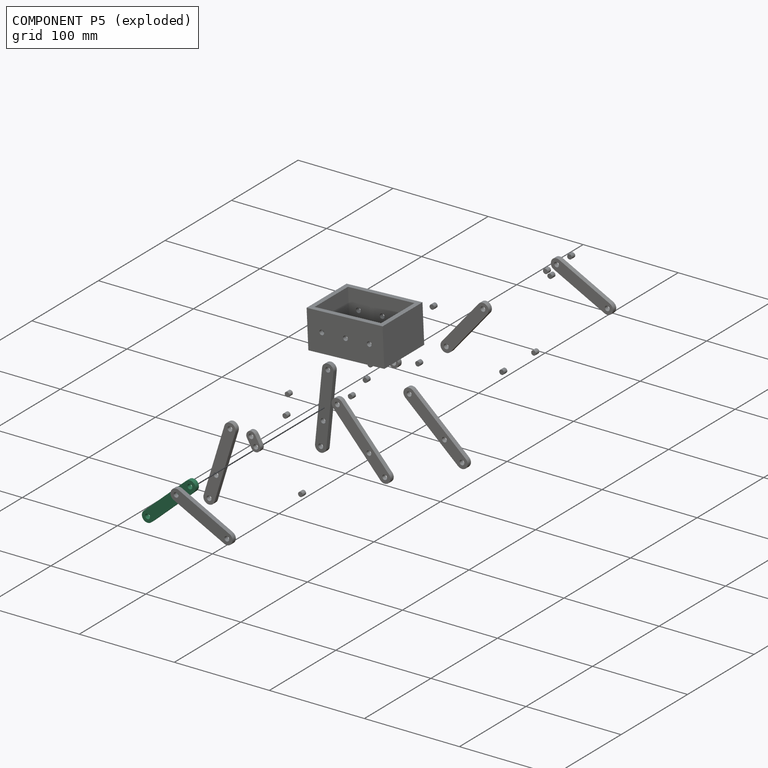
[diagram: component P5 — exploded]
COMPONENT P5 — same part as P2 (CADFS 00737378); its construction recipe is shown at P2.
Held by: REVOLUTE mate "轉動 8" to P10; REVOLUTE mate "333" to P8; REVOLUTE mate "轉動 9" to P19.
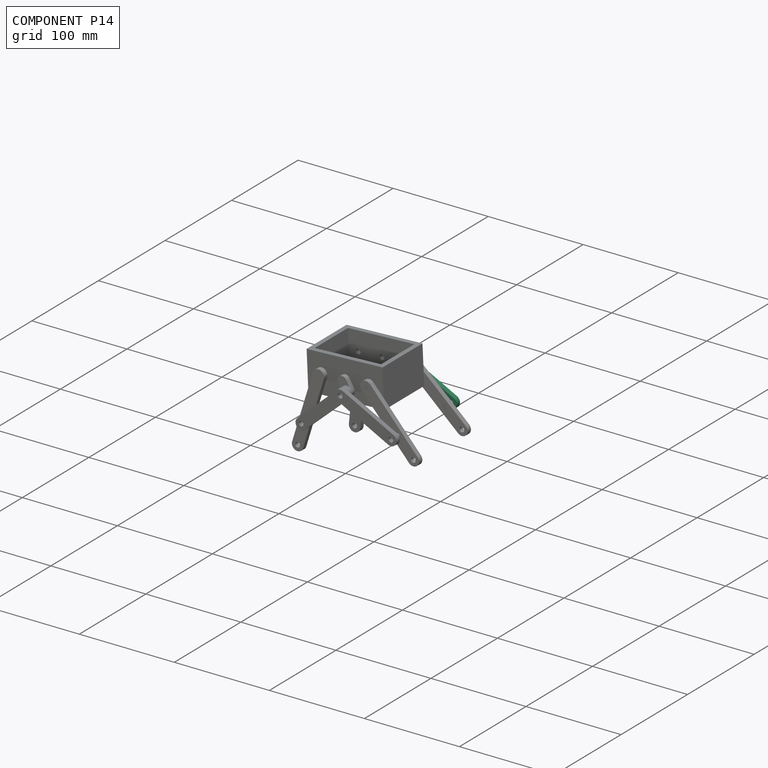
[diagram: component P14 — assembled]
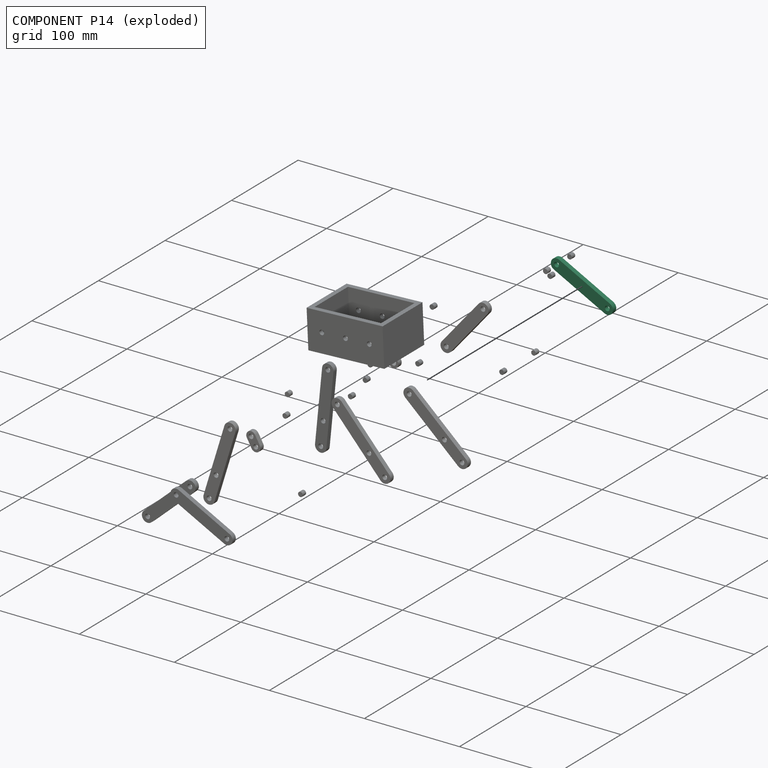
[diagram: component P14 — exploded]
COMPONENT P14 — same part as P2 (CADFS 00737378); its construction recipe is shown at P2.
Held by: REVOLUTE mate "轉動 26" to P18; REVOLUTE mate "轉動 25" to P2.
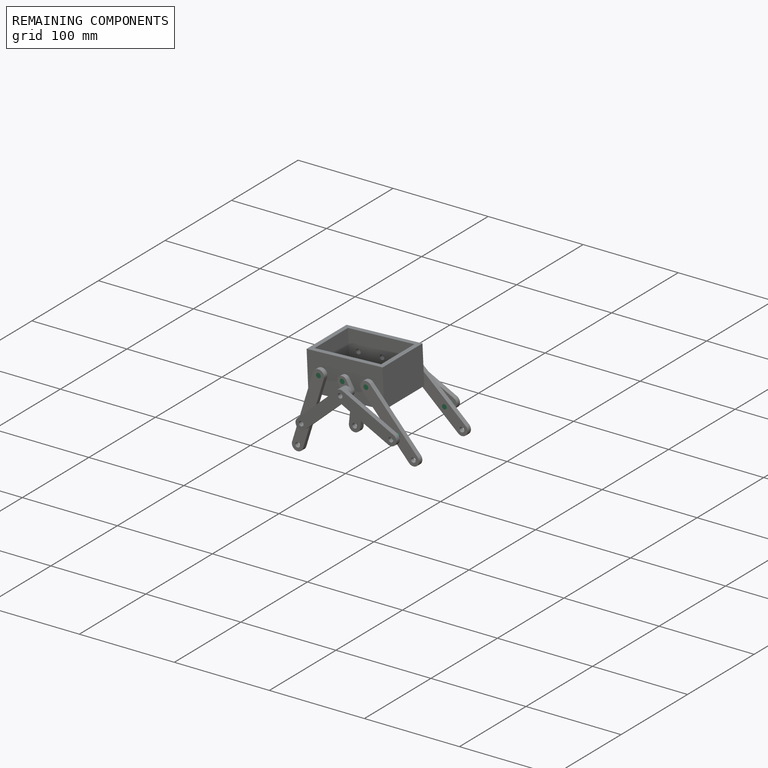
[diagram: remaining components — assembled]
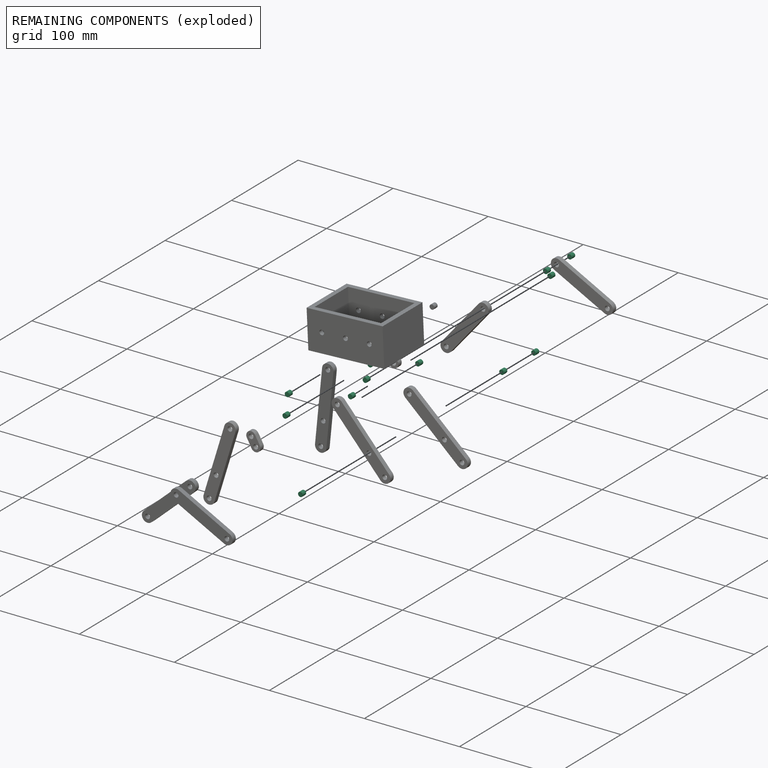
[diagram: remaining components — exploded]
REMAINING COMPONENTS (grouped) — the 12 components below fall outside the per-component tour by the significance rule stated above; both spotlight views highlight the whole group.
  P17: bounding box 5.0 x 5.0 x 5.0 mm, volume 98 mm^3. Recipe-attached (CADFS 00737411; recipe not printed under the significance rule). Held by: REVOLUTE mate "轉動 7" to P21.
  P13: bounding box 5.0 x 5.0 x 5.0 mm, volume 98 mm^3. Recipe-attached (CADFS 00737411; recipe not printed under the significance rule). Held by: REVOLUTE mate "轉動 3" to P21; REVOLUTE mate "轉動 6" to P22.
  P12: bounding box 5.0 x 5.0 x 5.0 mm, volume 98 mm^3. Recipe-attached (CADFS 00737411; recipe not printed under the significance rule). Held by: REVOLUTE mate "轉動 18" to P11; REVOLUTE mate "轉動 19" to P2; REVOLUTE mate "轉動 24" to P3.
  P20: bounding box 5.0 x 5.0 x 5.0 mm, volume 98 mm^3. Recipe-attached (CADFS 00737411; recipe not printed under the significance rule). Held by: REVOLUTE mate "轉動 2" to P21; REVOLUTE mate "轉動 5" to P10.
  P7: bounding box 5.0 x 5.0 x 5.0 mm, volume 98 mm^3. Recipe-attached (CADFS 00737411; recipe not printed under the significance rule). Held by: REVOLUTE mate "轉動 20" to P2.
  P11: bounding box 5.0 x 5.0 x 5.0 mm, volume 98 mm^3. Recipe-attached (CADFS 00737411; recipe not printed under the significance rule). Held by: REVOLUTE mate "轉動 18" to P12; REVOLUTE mate "轉動 17" to P0.
  P15: bounding box 5.0 x 5.0 x 5.0 mm, volume 98 mm^3. Recipe-attached (CADFS 00737411; recipe not printed under the significance rule). Held by: REVOLUTE mate "轉動 23" to P18; REVOLUTE mate "轉動 22" to P6.
  P9: bounding box 5.0 x 5.0 x 5.0 mm, volume 98 mm^3. Recipe-attached (CADFS 00737411; recipe not printed under the significance rule). Held by: REVOLUTE mate "轉動 13" to P21; REVOLUTE mate "轉動 15" to P6.
  P18: bounding box 5.0 x 5.0 x 5.0 mm, volume 98 mm^3. Recipe-attached (CADFS 00737411; recipe not printed under the significance rule). Held by: REVOLUTE mate "轉動 26" to P14; REVOLUTE mate "轉動 23" to P15.
  P3: bounding box 5.0 x 5.0 x 5.0 mm, volume 98 mm^3. Recipe-attached (CADFS 00737411; recipe not printed under the significance rule). Held by: REVOLUTE mate "轉動 24" to P12.
  P4: bounding box 5.0 x 5.0 x 5.0 mm, volume 98 mm^3. Recipe-attached (CADFS 00737411; recipe not printed under the significance rule). Held by: REVOLUTE mate "轉動 4" to P8; REVOLUTE mate "轉動 1" to P21.
  P16: bounding box 5.0 x 5.0 x 5.0 mm, volume 98 mm^3. Recipe-attached (CADFS 00737411; recipe not printed under the significance rule). Held by: REVOLUTE mate "轉動 10" to P22; REVOLUTE mate "轉動 11" to P19.
PROVENANCE & LICENSES
Assembly (occurrences, transforms, mates, per-part STEP geometry): AutoMate dataset, Zenodo record 7776208, CC0.
Construction recipes: CADFS (HuggingFace VladPyatov/CADFS, CC-BY-4.0, layered over the ABC dataset), FeatureScript reconstruction programs keyed by ABC model id.
Join: ABC meta listings map ABC model id -> Onshape documentId; within a shared document, parts are matched by geometric signature (bounding-box dims + volume at 0.1% relative tolerance, exact B-rep face/solid counts).
Verification: 24 of this assembly's 24 components carry a recipe attachment, and every attachment is mesh-verified: the CADFS STEP and the AutoMate member STEP were compared as meshes in their shared local frame (symmetric sampled-point-to-mesh distance); worst across the 24 attachments: below the mesh-comparison resolution (tessellation chordal tolerance ~0.162 mm) on a 108 mm part.
Renders: orthographic iso camera (az 35 / el 25); the floor grid conveys scale (grid pitch printed in each image; no ruler). In the exploded view each component is displaced by its stored offset vector: the offsets alone carry the explosion direction (mate normal/axis signs are not orientation cues and do not encode it), and separation distances are assigned per mate-chain, not proportionally to assembly-order depth.
